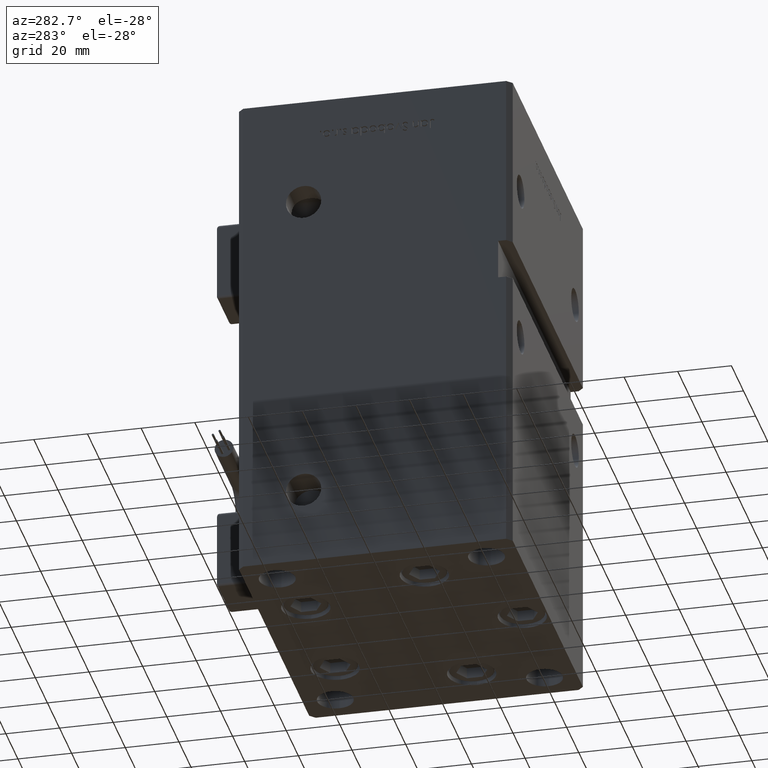
[diagram: clean part render]
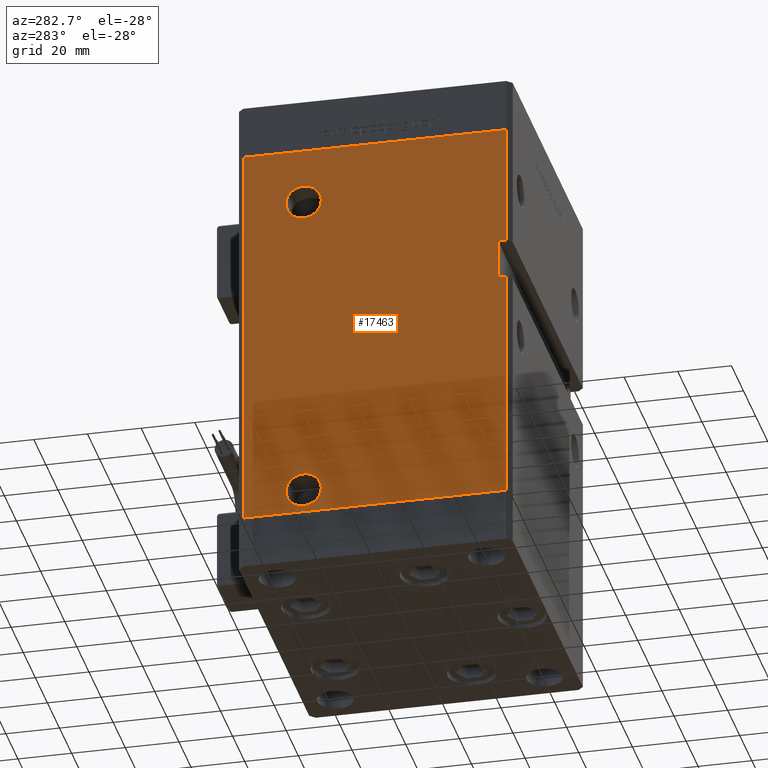
[diagram: same view with one face highlighted and labeled with its STEP entity id]
A machine part, auxiliary view. The second image highlights one B-rep face of the part: STEP entity #17463.
In plain terms, the highlighted planar face has unit normal (1, 0, 0).
Its self-contained STEP definition (entity closure, byte-faithful):
#101 = CARTESIAN_POINT ( 'NONE',  ( -60.00000000000000711, 26.50000000000000000, 127.5000000000000000 ) ) ;
#182 = EDGE_CURVE ( 'NONE', #31088, #3405, #6437, .T. ) ;
#448 = CIRCLE ( 'NONE', #30481, 6.580000000000016058 ) ;
#554 = CARTESIAN_POINT ( 'NONE',  ( -60.00000000000001421, 49.00000000000000000, 148.5000000000000000 ) ) ;
#724 = CARTESIAN_POINT ( 'NONE',  ( -59.99999999999998579, -45.99999999999999289, 103.0000000000000000 ) ) ;
#1272 = DIRECTION ( 'NONE',  ( -0.000000000000000000, -0.000000000000000000, -1.000000000000000000 ) ) ;
#1433 = CARTESIAN_POINT ( 'NONE',  ( -60.00000000000000711, 19.91999999999999815, 9.000000000000007105 ) ) ;
#1478 = DIRECTION ( 'NONE',  ( -1.000000000000000000, -2.275047181608927644E-16, 0.000000000000000000 ) ) ;
#1851 = CIRCLE ( 'NONE', #6429, 6.580000000000002736 ) ;
#1937 = DIRECTION ( 'NONE',  ( 2.832201593431522219E-16, -1.000000000000000000, 0.000000000000000000 ) ) ;
#2851 = ORIENTED_EDGE ( 'NONE', *, *, #7416, .F. ) ;
#3244 = EDGE_CURVE ( 'NONE', #7778, #14358, #53550, .T. ) ;
#3405 = VERTEX_POINT ( 'NONE', #26126 ) ;
#4362 = ORIENTED_EDGE ( 'NONE', *, *, #54291, .F. ) ;
#5706 = CARTESIAN_POINT ( 'NONE',  ( -59.99999999999998579, -45.99999999999999289, 88.00000000000000000 ) ) ;
#5982 = AXIS2_PLACEMENT_3D ( 'NONE', #16748, #18436, #39825 ) ;
#6038 = CARTESIAN_POINT ( 'NONE',  ( -60.00000000000000711, 26.50000000000000000, 127.5000000000000000 ) ) ;
#6390 = EDGE_CURVE ( 'NONE', #6584, #31105, #8391, .T. ) ;
#6429 = AXIS2_PLACEMENT_3D ( 'NONE', #10060, #1478, #22884 ) ;
#6437 = LINE ( 'NONE', #36072, #36510 ) ;
#6584 = VERTEX_POINT ( 'NONE', #47315 ) ;
#7416 = EDGE_CURVE ( 'NONE', #54964, #31088, #18509, .T. ) ;
#7486 = EDGE_CURVE ( 'NONE', #16400, #11336, #50156, .T. ) ;
#7778 = VERTEX_POINT ( 'NONE', #44398 ) ;
#7816 = CIRCLE ( 'NONE', #5982, 6.580000000000002736 ) ;
#8391 = CIRCLE ( 'NONE', #12025, 6.580000000000016058 ) ;
#9150 = CARTESIAN_POINT ( 'NONE',  ( -60.00000000000001421, 49.00000000000000000, 148.5000000000000000 ) ) ;
#10060 = CARTESIAN_POINT ( 'NONE',  ( -60.00000000000000711, 26.50000000000000000, 9.000000000000007105 ) ) ;
#10197 = VECTOR ( 'NONE', #45021, 1000.000000000000000 ) ;
#10868 = EDGE_CURVE ( 'NONE', #18049, #14358, #43782, .T. ) ;
#11027 = ORIENTED_EDGE ( 'NONE', *, *, #36504, .T. ) ;
#11297 = EDGE_CURVE ( 'NONE', #54964, #7778, #44484, .T. ) ;
#11336 = VERTEX_POINT ( 'NONE', #5706 ) ;
#11493 = DIRECTION ( 'NONE',  ( -2.832201593431522219E-16, 1.000000000000000000, 0.000000000000000000 ) ) ;
#12025 = AXIS2_PLACEMENT_3D ( 'NONE', #6038, #22863, #44801 ) ;
#13098 = VECTOR ( 'NONE', #34789, 1000.000000000000000 ) ;
#13162 = VECTOR ( 'NONE', #48295, 1000.000000000000000 ) ;
#14358 = VERTEX_POINT ( 'NONE', #22615 ) ;
#14368 = LINE ( 'NONE', #39457, #13162 ) ;
#14914 = FACE_OUTER_BOUND ( 'NONE', #42432, .T. ) ;
#15093 = CARTESIAN_POINT ( 'NONE',  ( -59.99999999999998579, -45.99999999999999289, 103.0000000000000000 ) ) ;
#15760 = FACE_BOUND ( 'NONE', #38530, .T. ) ;
#16400 = VERTEX_POINT ( 'NONE', #724 ) ;
#16748 = CARTESIAN_POINT ( 'NONE',  ( -60.00000000000000711, 26.50000000000000000, 9.000000000000007105 ) ) ;
#17078 = VECTOR ( 'NONE', #29765, 1000.000000000000000 ) ;
#17463 = ADVANCED_FACE ( 'NONE', ( #14914, #15760, #54260 ), #24601, .F. ) ;
#17674 = CARTESIAN_POINT ( 'NONE',  ( -60.00000000000000711, 33.07999999999999829, 9.000000000000007105 ) ) ;
#18049 = VERTEX_POINT ( 'NONE', #25772 ) ;
#18234 = VECTOR ( 'NONE', #1937, 1000.000000000000000 ) ;
#18436 = DIRECTION ( 'NONE',  ( -1.000000000000000000, -2.275047181608927644E-16, 0.000000000000000000 ) ) ;
#18509 = LINE ( 'NONE', #554, #10197 ) ;
#20044 = CARTESIAN_POINT ( 'NONE',  ( -60.00000000000001421, 49.00000000000000000, 148.5000000000000000 ) ) ;
#20163 = EDGE_CURVE ( 'NONE', #36876, #29393, #7816, .T. ) ;
#20249 = VECTOR ( 'NONE', #45869, 1000.000000000000000 ) ;
#21203 = EDGE_LOOP ( 'NONE', ( #40501, #49762 ) ) ;
#21830 = ORIENTED_EDGE ( 'NONE', *, *, #7486, .F. ) ;
#22118 = CARTESIAN_POINT ( 'NONE',  ( -59.99999999999998579, -48.99999999999998579, 148.5000000000000000 ) ) ;
#22615 = CARTESIAN_POINT ( 'NONE',  ( -59.99999999999998579, -48.99999999999998579, 0.000000000000000000 ) ) ;
#22863 = DIRECTION ( 'NONE',  ( -1.000000000000000000, -2.275047181608927644E-16, 0.000000000000000000 ) ) ;
#22884 = DIRECTION ( 'NONE',  ( 0.000000000000000000, -1.000000000000000000, 0.000000000000000000 ) ) ;
#23567 = ORIENTED_EDGE ( 'NONE', *, *, #20163, .F. ) ;
#24108 = DIRECTION ( 'NONE',  ( -0.000000000000000000, -0.000000000000000000, -1.000000000000000000 ) ) ;
#24601 = PLANE ( 'NONE',  #34083 ) ;
#25767 = LINE ( 'NONE', #43731, #17078 ) ;
#25772 = CARTESIAN_POINT ( 'NONE',  ( -59.99999999999998579, -48.99999999999998579, 88.00000000000000000 ) ) ;
#26126 = CARTESIAN_POINT ( 'NONE',  ( -59.99999999999998579, -48.99999999999998579, 103.0000000000000000 ) ) ;
#26620 = DIRECTION ( 'NONE',  ( -1.000000000000000000, -2.275047181608927644E-16, 0.000000000000000000 ) ) ;
#29393 = VERTEX_POINT ( 'NONE', #17674 ) ;
#29446 = CARTESIAN_POINT ( 'NONE',  ( -60.00000000000001421, 49.00000000000000000, 148.5000000000000000 ) ) ;
#29765 = DIRECTION ( 'NONE',  ( -0.000000000000000000, -1.000000000000000000, -0.000000000000000000 ) ) ;
#30481 = AXIS2_PLACEMENT_3D ( 'NONE', #101, #26620, #53417 ) ;
#31088 = VERTEX_POINT ( 'NONE', #35773 ) ;
#31105 = VERTEX_POINT ( 'NONE', #34510 ) ;
#34050 = ORIENTED_EDGE ( 'NONE', *, *, #10868, .F. ) ;
#34083 = AXIS2_PLACEMENT_3D ( 'NONE', #20044, #50261, #11493 ) ;
#34510 = CARTESIAN_POINT ( 'NONE',  ( -60.00000000000000711, 19.91999999999998394, 127.5000000000000000 ) ) ;
#34789 = DIRECTION ( 'NONE',  ( -0.000000000000000000, -0.000000000000000000, -1.000000000000000000 ) ) ;
#35549 = ORIENTED_EDGE ( 'NONE', *, *, #47491, .F. ) ;
#35773 = CARTESIAN_POINT ( 'NONE',  ( -59.99999999999998579, -48.99999999999998579, 148.5000000000000000 ) ) ;
#36072 = CARTESIAN_POINT ( 'NONE',  ( -59.99999999999998579, -48.99999999999998579, 148.5000000000000000 ) ) ;
#36504 = EDGE_CURVE ( 'NONE', #16400, #3405, #25767, .T. ) ;
#36510 = VECTOR ( 'NONE', #24108, 1000.000000000000000 ) ;
#36731 = ORIENTED_EDGE ( 'NONE', *, *, #11297, .T. ) ;
#36876 = VERTEX_POINT ( 'NONE', #1433 ) ;
#38530 = EDGE_LOOP ( 'NONE', ( #23567, #35549 ) ) ;
#39457 = CARTESIAN_POINT ( 'NONE',  ( -59.99999999999998579, -45.99999999999999289, 88.00000000000000000 ) ) ;
#39825 = DIRECTION ( 'NONE',  ( 0.000000000000000000, -1.000000000000000000, 0.000000000000000000 ) ) ;
#39872 = CARTESIAN_POINT ( 'NONE',  ( -60.00000000000001421, 49.00000000000000000, 0.000000000000000000 ) ) ;
#40501 = ORIENTED_EDGE ( 'NONE', *, *, #55684, .F. ) ;
#42432 = EDGE_LOOP ( 'NONE', ( #34050, #4362, #21830, #11027, #53741, #2851, #36731, #45692 ) ) ;
#43731 = CARTESIAN_POINT ( 'NONE',  ( -59.99999999999998579, -45.99999999999999289, 103.0000000000000000 ) ) ;
#43782 = LINE ( 'NONE', #22118, #49458 ) ;
#44398 = CARTESIAN_POINT ( 'NONE',  ( -60.00000000000001421, 49.00000000000000000, 0.000000000000000000 ) ) ;
#44484 = LINE ( 'NONE', #9150, #13098 ) ;
#44801 = DIRECTION ( 'NONE',  ( 0.000000000000000000, -1.000000000000000000, 0.000000000000000000 ) ) ;
#45021 = DIRECTION ( 'NONE',  ( 2.832201593431522219E-16, -1.000000000000000000, 0.000000000000000000 ) ) ;
#45692 = ORIENTED_EDGE ( 'NONE', *, *, #3244, .T. ) ;
#45869 = DIRECTION ( 'NONE',  ( 0.000000000000000000, 0.000000000000000000, -1.000000000000000000 ) ) ;
#47315 = CARTESIAN_POINT ( 'NONE',  ( -60.00000000000000711, 33.08000000000001251, 127.5000000000000000 ) ) ;
#47491 = EDGE_CURVE ( 'NONE', #29393, #36876, #1851, .T. ) ;
#48295 = DIRECTION ( 'NONE',  ( -0.000000000000000000, -1.000000000000000000, -0.000000000000000000 ) ) ;
#49458 = VECTOR ( 'NONE', #1272, 1000.000000000000000 ) ;
#49762 = ORIENTED_EDGE ( 'NONE', *, *, #6390, .F. ) ;
#50156 = LINE ( 'NONE', #15093, #20249 ) ;
#50261 = DIRECTION ( 'NONE',  ( 1.000000000000000000, 2.832201593431522219E-16, -0.000000000000000000 ) ) ;
#53417 = DIRECTION ( 'NONE',  ( 0.000000000000000000, -1.000000000000000000, 0.000000000000000000 ) ) ;
#53550 = LINE ( 'NONE', #39872, #18234 ) ;
#53741 = ORIENTED_EDGE ( 'NONE', *, *, #182, .F. ) ;
#54260 = FACE_BOUND ( 'NONE', #21203, .T. ) ;
#54291 = EDGE_CURVE ( 'NONE', #11336, #18049, #14368, .T. ) ;
#54964 = VERTEX_POINT ( 'NONE', #29446 ) ;
#55684 = EDGE_CURVE ( 'NONE', #31105, #6584, #448, .T. ) ;